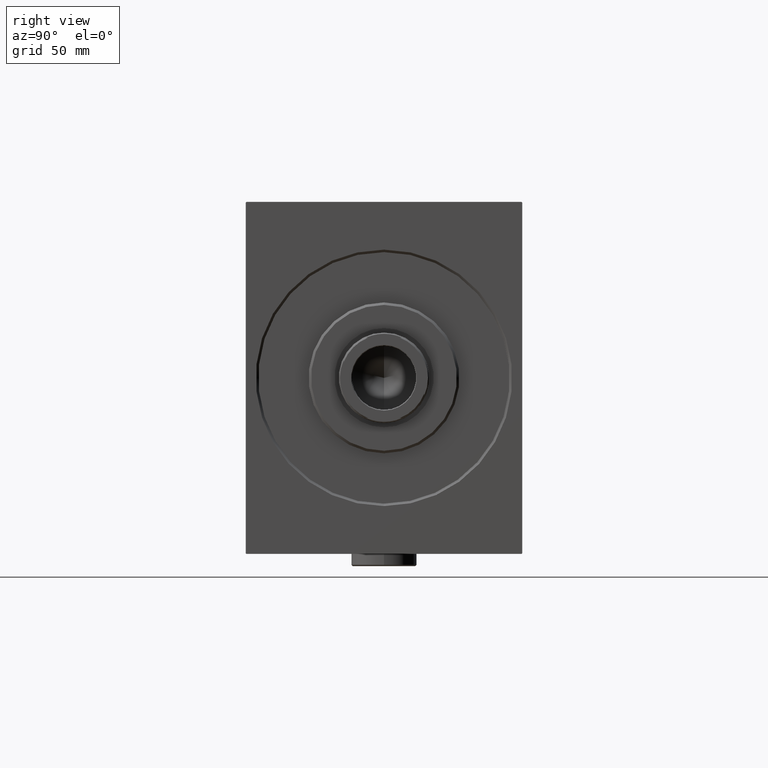
[diagram: clean part render]
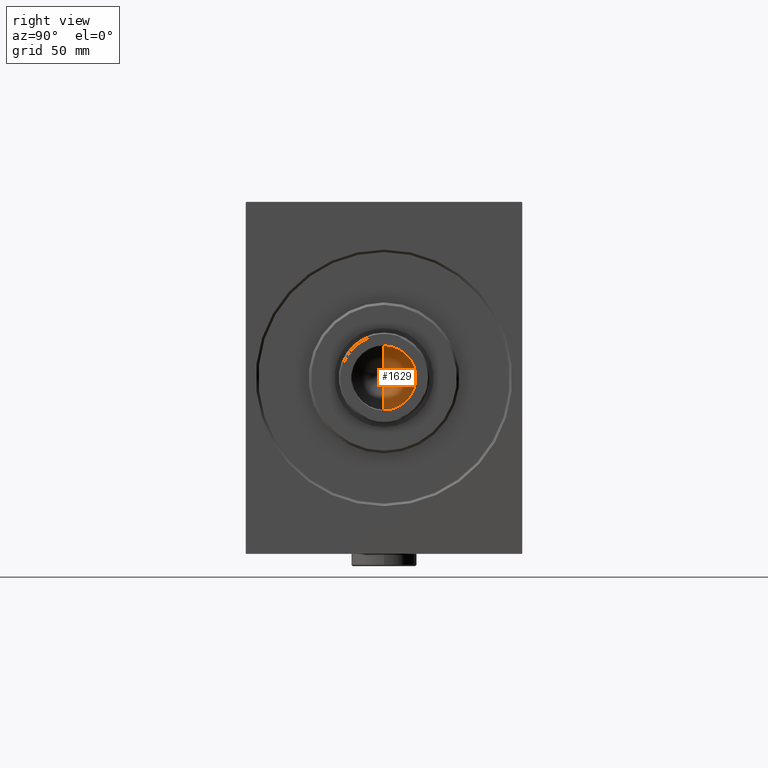
[diagram: same view with one face highlighted and labeled with its STEP entity id]
A machine part, right view. The second image highlights one B-rep face of the part: STEP entity #1629.
In plain terms, the highlighted conical surface has half-angle 59 deg.
Its self-contained STEP definition (entity closure, byte-faithful):
#940 = ORIENTED_EDGE ( 'NONE', *, *, #29870, .F. ) ;
#1190 = CIRCLE ( 'NONE', #23915, 12.74999999999999467 ) ;
#1529 = ORIENTED_EDGE ( 'NONE', *, *, #6902, .T. ) ;
#1588 = VERTEX_POINT ( 'NONE', #14758 ) ;
#1629 = ADVANCED_FACE ( 'NONE', ( #28434 ), #1945, .F. ) ;
#1945 = CONICAL_SURFACE ( 'NONE', #37094, 12.74999999999999467, 1.029744258676653645 ) ;
#3827 = LINE ( 'NONE', #11246, #7164 ) ;
#4239 = VERTEX_POINT ( 'NONE', #11357 ) ;
#5273 = EDGE_CURVE ( 'NONE', #1588, #22513, #17232, .T. ) ;
#6902 = EDGE_CURVE ( 'NONE', #22513, #4239, #1190, .T. ) ;
#7164 = VECTOR ( 'NONE', #14832, 1000.000000000000000 ) ;
#8517 = CARTESIAN_POINT ( 'NONE',  ( 12.74999999999999467, 0.000000000000000000, 174.0000000000000284 ) ) ;
#10934 = DIRECTION ( 'NONE',  ( 0.8571673007021118895, 0.000000000000000000, 0.5150380749100549327 ) ) ;
#11246 = CARTESIAN_POINT ( 'NONE',  ( -12.74999999999999467, 1.561424668912874519E-15, 174.0000000000000284 ) ) ;
#11357 = CARTESIAN_POINT ( 'NONE',  ( -12.74999999999999467, 1.561424668912874519E-15, 174.0000000000000284 ) ) ;
#12154 = DIRECTION ( 'NONE',  ( 1.000000000000000000, 0.000000000000000000, 0.000000000000000000 ) ) ;
#12371 = CARTESIAN_POINT ( 'NONE',  ( 0.000000000000000000, 0.000000000000000000, 174.0000000000000284 ) ) ;
#14758 = CARTESIAN_POINT ( 'NONE',  ( -1.026246296720136938E-14, 0.000000000000000000, 166.3390271073986071 ) ) ;
#14832 = DIRECTION ( 'NONE',  ( -0.8571673007021118895, 1.049727191138618079E-16, 0.5150380749100549327 ) ) ;
#17232 = LINE ( 'NONE', #31119, #31345 ) ;
#19381 = EDGE_LOOP ( 'NONE', ( #940, #26107, #1529 ) ) ;
#21256 = CARTESIAN_POINT ( 'NONE',  ( 0.000000000000000000, 0.000000000000000000, 174.0000000000000284 ) ) ;
#22513 = VERTEX_POINT ( 'NONE', #8517 ) ;
#23915 = AXIS2_PLACEMENT_3D ( 'NONE', #12371, #36143, #12154 ) ;
#26107 = ORIENTED_EDGE ( 'NONE', *, *, #5273, .T. ) ;
#28434 = FACE_OUTER_BOUND ( 'NONE', #19381, .T. ) ;
#29870 = EDGE_CURVE ( 'NONE', #1588, #4239, #3827, .T. ) ;
#31119 = CARTESIAN_POINT ( 'NONE',  ( 12.74999999999999467, 0.000000000000000000, 174.0000000000000284 ) ) ;
#31137 = DIRECTION ( 'NONE',  ( 1.000000000000000000, 0.000000000000000000, 0.000000000000000000 ) ) ;
#31345 = VECTOR ( 'NONE', #10934, 1000.000000000000000 ) ;
#36143 = DIRECTION ( 'NONE',  ( -0.000000000000000000, -0.000000000000000000, 1.000000000000000000 ) ) ;
#37094 = AXIS2_PLACEMENT_3D ( 'NONE', #21256, #41436, #31137 ) ;
#41436 = DIRECTION ( 'NONE',  ( -0.000000000000000000, -0.000000000000000000, 1.000000000000000000 ) ) ;